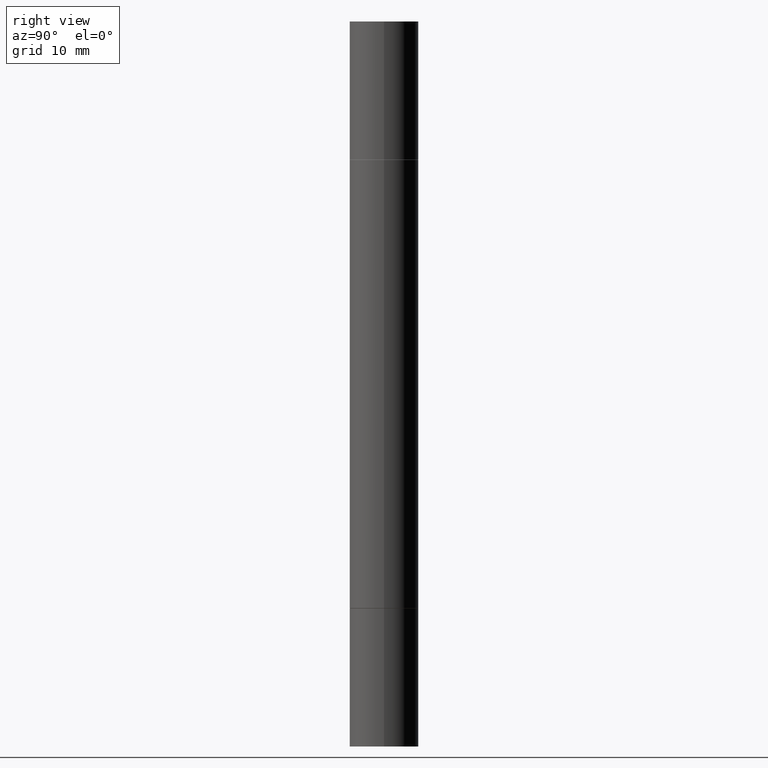
[diagram: clean part render]
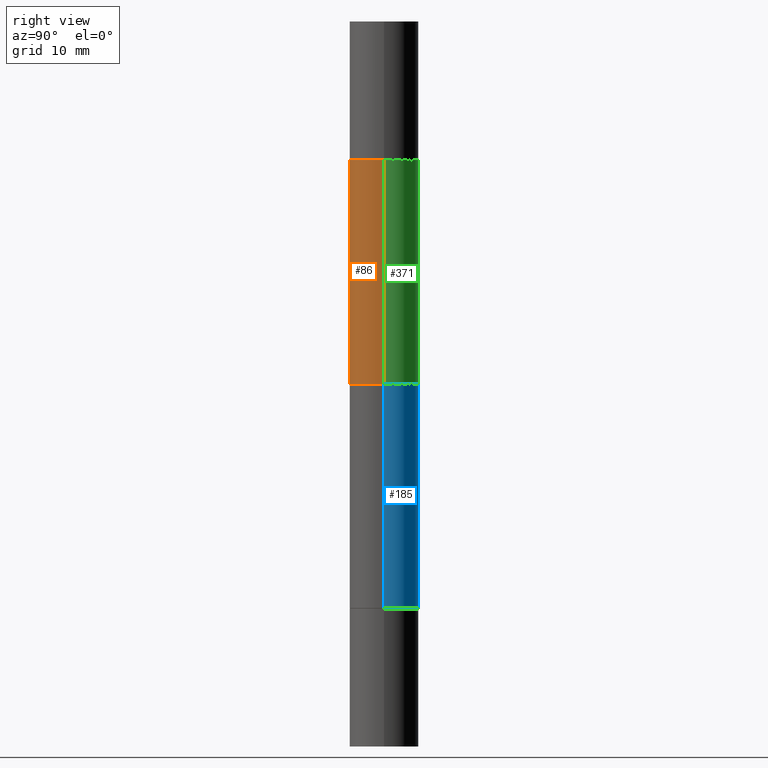
[diagram: same view with three faces highlighted in distinct colors, each labeled with its STEP entity id]
A machine part, right view with three faces highlighted in distinct colors.
Their STEP definitions:

[orange] entity #86 — the highlighted cylindrical surface (edge-blend (fillet) strip) has radius 2.9997 mm, axis along (-0, -0, -1).
#3 = VECTOR ( 'NONE', #420, 39.37007874015748143 ) ;
#14 = DIRECTION ( 'NONE',  ( 0.000000000000000000, 1.000000000000000000, -4.626330217890374069E-15 ) ) ;
#19 = CARTESIAN_POINT ( 'NONE',  ( -0.1180999999999999966, -8.415620457722018772E-16, -0.4733999999999996544 ) ) ;
#54 = DIRECTION ( 'NONE',  ( -2.445468806185136877E-29, -3.492890411551753071E-15, -1.000000000000000000 ) ) ;
#64 = EDGE_CURVE ( 'NONE', #357, #426, #220, .T. ) ;
#86 = ADVANCED_FACE ( 'NONE', ( #308 ), #209, .T. ) ;
#209 = CYLINDRICAL_SURFACE ( 'NONE', #581, 0.1180999999999998856 ) ;
#220 = LINE ( 'NONE', #416, #470 ) ;
#223 = EDGE_CURVE ( 'NONE', #232, #426, #559, .T. ) ;
#232 = VERTEX_POINT ( 'NONE', #322 ) ;
#241 = CARTESIAN_POINT ( 'NONE',  ( 4.907811347132950827E-29, -1.651786859309018332E-15, -0.4733999999999996544 ) ) ;
#242 = ORIENTED_EDGE ( 'NONE', *, *, #223, .F. ) ;
#251 = LINE ( 'NONE', #577, #3 ) ;
#252 = CARTESIAN_POINT ( 'NONE',  ( -0.1180999999999998856, -2.180648907300854672E-15, -1.240149999999999864 ) ) ;
#256 = DIRECTION ( 'NONE',  ( 1.000000000000000000, -6.982962677686271444E-15, 0.000000000000000000 ) ) ;
#264 = ORIENTED_EDGE ( 'NONE', *, *, #676, .F. ) ;
#274 = DIRECTION ( 'NONE',  ( -0.000000000000000000, -3.492185875197449130E-15, -1.000000000000000000 ) ) ;
#308 = FACE_OUTER_BOUND ( 'NONE', #385, .T. ) ;
#322 = CARTESIAN_POINT ( 'NONE',  ( 0.1180999999999998856, -3.815561613072418896E-15, -1.240149999999999864 ) ) ;
#357 = VERTEX_POINT ( 'NONE', #19 ) ;
#372 = CARTESIAN_POINT ( 'NONE',  ( 0.000000000000000000, -8.661668626252231138E-15, -2.480299999999999727 ) ) ;
#373 = CIRCLE ( 'NONE', #622, 0.1180999999999999966 ) ;
#383 = AXIS2_PLACEMENT_3D ( 'NONE', #526, #274, #14 ) ;
#385 = EDGE_LOOP ( 'NONE', ( #437, #494, #242, #264 ) ) ;
#416 = CARTESIAN_POINT ( 'NONE',  ( -0.1180999999999998856, -7.851443812715415176E-15, -2.480299999999999727 ) ) ;
#420 = DIRECTION ( 'NONE',  ( -2.445468806185136877E-29, -3.492890411551753071E-15, -1.000000000000000000 ) ) ;
#424 = DIRECTION ( 'NONE',  ( -2.445468806185136597E-29, -3.492890411551752677E-15, -1.000000000000000000 ) ) ;
#426 = VERTEX_POINT ( 'NONE', #252 ) ;
#437 = ORIENTED_EDGE ( 'NONE', *, *, #508, .F. ) ;
#470 = VECTOR ( 'NONE', #54, 39.37007874015748143 ) ;
#493 = DIRECTION ( 'NONE',  ( 2.445468806185136597E-29, 3.492890411551752677E-15, 1.000000000000000000 ) ) ;
#494 = ORIENTED_EDGE ( 'NONE', *, *, #64, .T. ) ;
#508 = EDGE_CURVE ( 'NONE', #357, #654, #373, .T. ) ;
#526 = CARTESIAN_POINT ( 'NONE',  ( 3.032748139990496817E-29, -4.329960582366326879E-15, -1.240149999999999864 ) ) ;
#559 = CIRCLE ( 'NONE', #383, 0.1180999999999998856 ) ;
#577 = CARTESIAN_POINT ( 'NONE',  ( 0.1180999999999998856, -9.486356518486979401E-15, -2.480299999999999727 ) ) ;
#581 = AXIS2_PLACEMENT_3D ( 'NONE', #372, #424, #256 ) ;
#622 = AXIS2_PLACEMENT_3D ( 'NONE', #241, #493, #671 ) ;
#654 = VERTEX_POINT ( 'NONE', #669 ) ;
#669 = CARTESIAN_POINT ( 'NONE',  ( 0.1180999999999999966, -2.476474751543767778E-15, -0.4733999999999996544 ) ) ;
#671 = DIRECTION ( 'NONE',  ( 1.000000000000000000, -6.982962677686265133E-15, 0.000000000000000000 ) ) ;
#676 = EDGE_CURVE ( 'NONE', #654, #232, #251, .T. ) ;

[blue] entity #185 — the highlighted cylindrical surface (edge-blend (fillet) strip) has radius 2.9997 mm, axis along (-0, -0, -1).
#4 = CARTESIAN_POINT ( 'NONE',  ( 0.1180999999999999966, -7.831741791159056177E-15, -2.006899999999999906 ) ) ;
#6 = LINE ( 'NONE', #263, #514 ) ;
#7 = DIRECTION ( 'NONE',  ( 1.000000000000000000, -6.982962677686271444E-15, 0.000000000000000000 ) ) ;
#31 = EDGE_LOOP ( 'NONE', ( #381, #268, #333, #623 ) ) ;
#37 = VERTEX_POINT ( 'NONE', #254 ) ;
#39 = DIRECTION ( 'NONE',  ( -2.445468806185136877E-29, -3.492890411551753071E-15, -1.000000000000000000 ) ) ;
#52 = VERTEX_POINT ( 'NONE', #4 ) ;
#70 = VECTOR ( 'NONE', #39, 39.37007874015748143 ) ;
#75 = CARTESIAN_POINT ( 'NONE',  ( 0.1180999999999999966, -2.476474751543767778E-15, -0.4733999999999996544 ) ) ;
#98 = CARTESIAN_POINT ( 'NONE',  ( 0.1180999999999998856, -9.486356518486979401E-15, -2.480299999999999727 ) ) ;
#101 = DIRECTION ( 'NONE',  ( 1.000000000000000000, -6.982962677686265133E-15, 0.000000000000000000 ) ) ;
#117 = FACE_OUTER_BOUND ( 'NONE', #31, .T. ) ;
#123 = DIRECTION ( 'NONE',  ( -2.445468806185136877E-29, -3.492890411551753071E-15, -1.000000000000000000 ) ) ;
#158 = EDGE_CURVE ( 'NONE', #37, #237, #6, .T. ) ;
#185 = ADVANCED_FACE ( 'NONE', ( #117 ), #475, .T. ) ;
#195 = AXIS2_PLACEMENT_3D ( 'NONE', #674, #600, #101 ) ;
#205 = EDGE_CURVE ( 'NONE', #250, #37, #301, .T. ) ;
#237 = VERTEX_POINT ( 'NONE', #530 ) ;
#250 = VERTEX_POINT ( 'NONE', #75 ) ;
#254 = CARTESIAN_POINT ( 'NONE',  ( -0.1180999999999999966, -8.415620457722018772E-16, -0.4733999999999996544 ) ) ;
#263 = CARTESIAN_POINT ( 'NONE',  ( -0.1180999999999998856, -7.851443812715415176E-15, -2.480299999999999727 ) ) ;
#268 = ORIENTED_EDGE ( 'NONE', *, *, #205, .F. ) ;
#301 = CIRCLE ( 'NONE', #382, 0.1180999999999999966 ) ;
#313 = CARTESIAN_POINT ( 'NONE',  ( 0.000000000000000000, -8.661668626252231138E-15, -2.480299999999999727 ) ) ;
#317 = DIRECTION ( 'NONE',  ( 1.000000000000000000, -6.982962677686265133E-15, 0.000000000000000000 ) ) ;
#333 = ORIENTED_EDGE ( 'NONE', *, *, #400, .T. ) ;
#368 = CARTESIAN_POINT ( 'NONE',  ( 4.907811347132950827E-29, -1.651786859309018332E-15, -0.4733999999999996544 ) ) ;
#381 = ORIENTED_EDGE ( 'NONE', *, *, #158, .F. ) ;
#382 = AXIS2_PLACEMENT_3D ( 'NONE', #368, #579, #317 ) ;
#387 = LINE ( 'NONE', #98, #70 ) ;
#400 = EDGE_CURVE ( 'NONE', #250, #52, #387, .T. ) ;
#464 = DIRECTION ( 'NONE',  ( -2.445468806185136597E-29, -3.492890411551752677E-15, -1.000000000000000000 ) ) ;
#475 = CYLINDRICAL_SURFACE ( 'NONE', #595, 0.1180999999999998856 ) ;
#514 = VECTOR ( 'NONE', #123, 39.37007874015748143 ) ;
#530 = CARTESIAN_POINT ( 'NONE',  ( -0.1181000000000000105, -3.519735768829505001E-15, -2.006899999999999906 ) ) ;
#579 = DIRECTION ( 'NONE',  ( 2.445468806185136597E-29, 3.492890411551752677E-15, 1.000000000000000000 ) ) ;
#595 = AXIS2_PLACEMENT_3D ( 'NONE', #313, #464, #7 ) ;
#600 = DIRECTION ( 'NONE',  ( -2.445468806185136597E-29, 3.491481338843145583E-15, 1.000000000000000000 ) ) ;
#606 = CIRCLE ( 'NONE', #195, 0.1180999999999999966 ) ;
#623 = ORIENTED_EDGE ( 'NONE', *, *, #630, .T. ) ;
#630 = EDGE_CURVE ( 'NONE', #52, #237, #606, .T. ) ;
#674 = CARTESIAN_POINT ( 'NONE',  ( 4.907811347132950827E-29, -7.007053898924308703E-15, -2.006899999999999906 ) ) ;

[green] entity #371 — the highlighted cylindrical surface (edge-blend (fillet) strip) has radius 2.9997 mm, axis along (-0, -0, -1).
#3 = VECTOR ( 'NONE', #420, 39.37007874015748143 ) ;
#19 = CARTESIAN_POINT ( 'NONE',  ( -0.1180999999999999966, -8.415620457722018772E-16, -0.4733999999999996544 ) ) ;
#27 = CYLINDRICAL_SURFACE ( 'NONE', #302, 0.1180999999999998856 ) ;
#54 = DIRECTION ( 'NONE',  ( -2.445468806185136877E-29, -3.492890411551753071E-15, -1.000000000000000000 ) ) ;
#64 = EDGE_CURVE ( 'NONE', #357, #426, #220, .T. ) ;
#67 = EDGE_CURVE ( 'NONE', #426, #232, #502, .T. ) ;
#154 = ORIENTED_EDGE ( 'NONE', *, *, #64, .F. ) ;
#167 = CARTESIAN_POINT ( 'NONE',  ( 3.032748139990496817E-29, -4.329960582366326879E-15, -1.240149999999999864 ) ) ;
#175 = FACE_OUTER_BOUND ( 'NONE', #504, .T. ) ;
#184 = AXIS2_PLACEMENT_3D ( 'NONE', #446, #393, #354 ) ;
#220 = LINE ( 'NONE', #416, #470 ) ;
#228 = DIRECTION ( 'NONE',  ( 1.000000000000000000, -6.982962677686271444E-15, 0.000000000000000000 ) ) ;
#232 = VERTEX_POINT ( 'NONE', #322 ) ;
#234 = CARTESIAN_POINT ( 'NONE',  ( 0.000000000000000000, -8.661668626252231138E-15, -2.480299999999999727 ) ) ;
#248 = ORIENTED_EDGE ( 'NONE', *, *, #676, .T. ) ;
#251 = LINE ( 'NONE', #577, #3 ) ;
#252 = CARTESIAN_POINT ( 'NONE',  ( -0.1180999999999998856, -2.180648907300854672E-15, -1.240149999999999864 ) ) ;
#302 = AXIS2_PLACEMENT_3D ( 'NONE', #234, #376, #228 ) ;
#309 = DIRECTION ( 'NONE',  ( -0.000000000000000000, -3.492185875197449130E-15, -1.000000000000000000 ) ) ;
#322 = CARTESIAN_POINT ( 'NONE',  ( 0.1180999999999998856, -3.815561613072418896E-15, -1.240149999999999864 ) ) ;
#354 = DIRECTION ( 'NONE',  ( 1.000000000000000000, -6.982962677686265133E-15, 0.000000000000000000 ) ) ;
#357 = VERTEX_POINT ( 'NONE', #19 ) ;
#371 = ADVANCED_FACE ( 'NONE', ( #175 ), #27, .T. ) ;
#376 = DIRECTION ( 'NONE',  ( -2.445468806185136597E-29, -3.492890411551752677E-15, -1.000000000000000000 ) ) ;
#393 = DIRECTION ( 'NONE',  ( 2.445468806185136597E-29, 3.492890411551752677E-15, 1.000000000000000000 ) ) ;
#395 = ORIENTED_EDGE ( 'NONE', *, *, #488, .F. ) ;
#407 = CIRCLE ( 'NONE', #184, 0.1180999999999999966 ) ;
#416 = CARTESIAN_POINT ( 'NONE',  ( -0.1180999999999998856, -7.851443812715415176E-15, -2.480299999999999727 ) ) ;
#420 = DIRECTION ( 'NONE',  ( -2.445468806185136877E-29, -3.492890411551753071E-15, -1.000000000000000000 ) ) ;
#426 = VERTEX_POINT ( 'NONE', #252 ) ;
#446 = CARTESIAN_POINT ( 'NONE',  ( 4.907811347132950827E-29, -1.651786859309018332E-15, -0.4733999999999996544 ) ) ;
#469 = DIRECTION ( 'NONE',  ( 0.000000000000000000, 1.000000000000000000, -4.626330217890374069E-15 ) ) ;
#470 = VECTOR ( 'NONE', #54, 39.37007874015748143 ) ;
#488 = EDGE_CURVE ( 'NONE', #654, #357, #407, .T. ) ;
#491 = AXIS2_PLACEMENT_3D ( 'NONE', #167, #309, #469 ) ;
#502 = CIRCLE ( 'NONE', #491, 0.1180999999999998856 ) ;
#504 = EDGE_LOOP ( 'NONE', ( #154, #395, #248, #616 ) ) ;
#577 = CARTESIAN_POINT ( 'NONE',  ( 0.1180999999999998856, -9.486356518486979401E-15, -2.480299999999999727 ) ) ;
#616 = ORIENTED_EDGE ( 'NONE', *, *, #67, .F. ) ;
#654 = VERTEX_POINT ( 'NONE', #669 ) ;
#669 = CARTESIAN_POINT ( 'NONE',  ( 0.1180999999999999966, -2.476474751543767778E-15, -0.4733999999999996544 ) ) ;
#676 = EDGE_CURVE ( 'NONE', #654, #232, #251, .T. ) ;